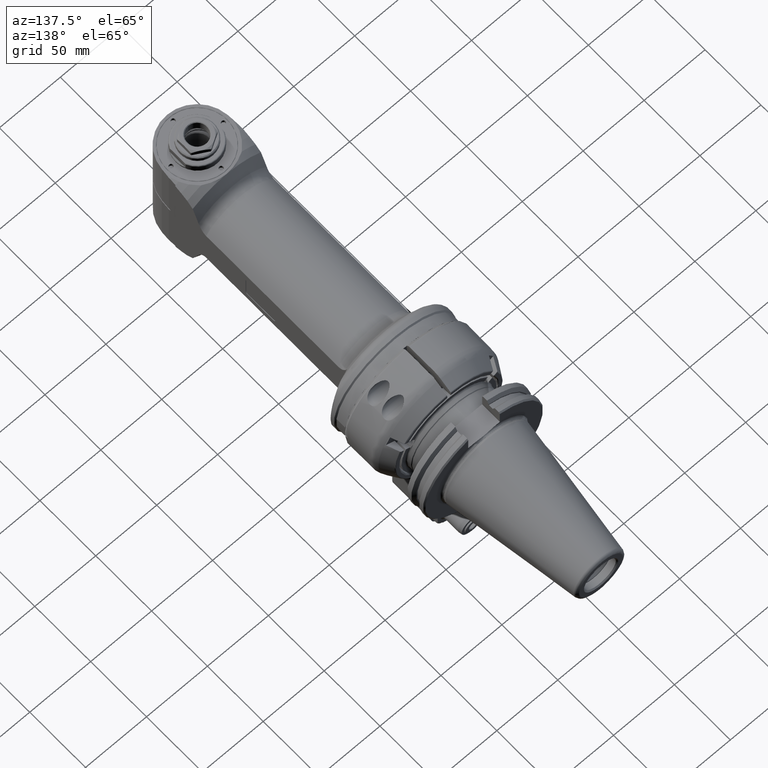
[diagram: clean part render]
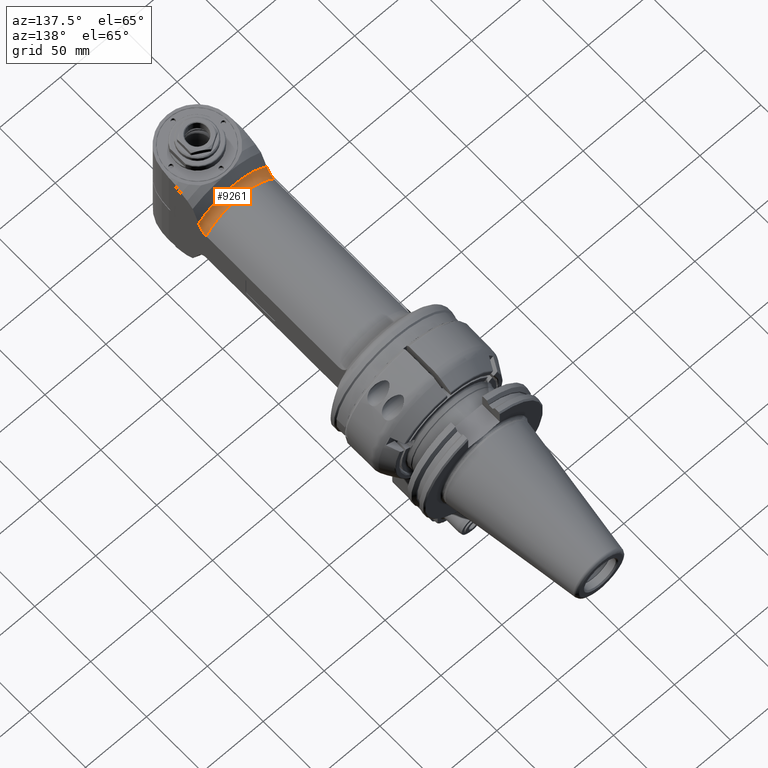
[diagram: same view with one face highlighted and labeled with its STEP entity id]
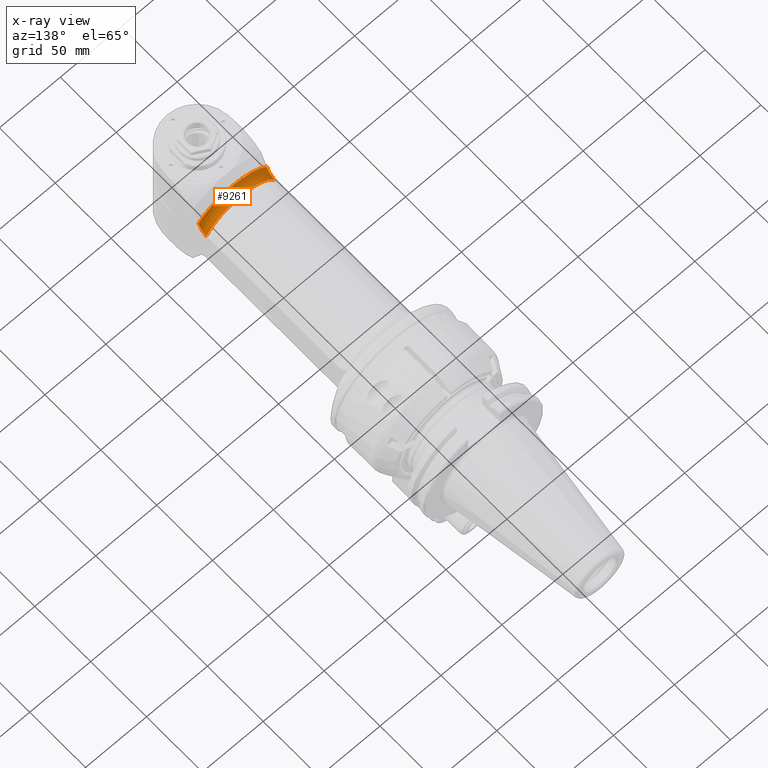
[diagram: x-ray of the same camera — body ghosted, the highlighted face saturated]
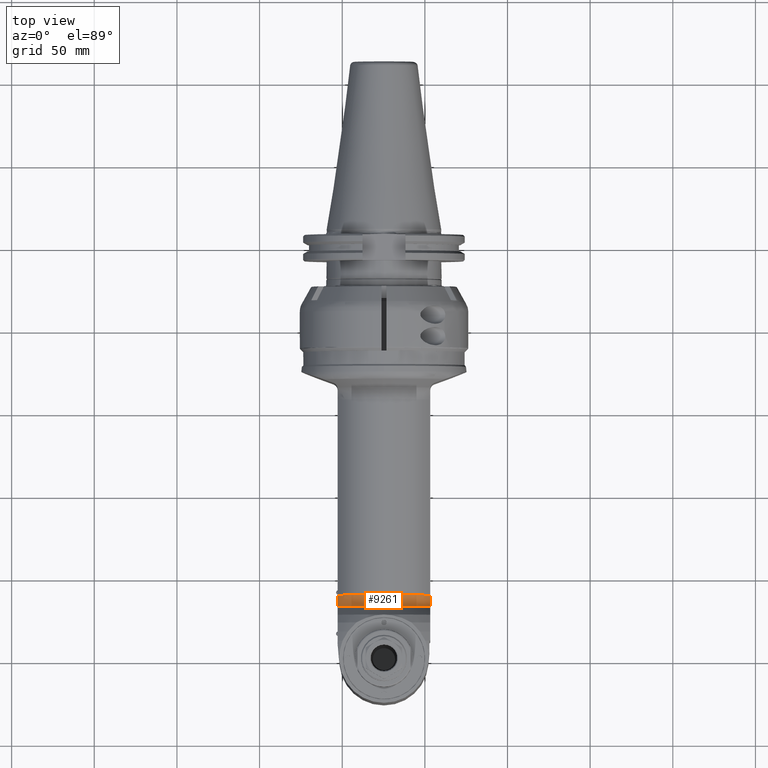
[diagram: same view with one face highlighted and labeled with its STEP entity id]
A machine part, auxiliary view. The second image highlights one B-rep face of the part: STEP entity #9261.
The next image is the same camera in x-ray: the body ghosted, the highlighted face saturated — about 0% of this face is hidden behind the body in this view.
A second angle (top view) of the same face is appended — the face is thin or edge-on in the first view.
In plain terms, the highlighted toroidal blend (fillet) surface has major radius 40 mm and minor (blend) radius 8 mm.
Its self-contained STEP definition (entity closure, byte-faithful):
#228=B_SPLINE_CURVE_WITH_KNOTS('',3,(#16384,#16385,#16386,#16387,#16388,
#16389,#16390,#16391,#16392,#16393,#16394,#16395,#16396,#16397),
 .UNSPECIFIED.,.F.,.F.,(4,2,2,2,2,2,4),(-3.92307824233944,-3.77852981809237,
-3.54200246554002,-3.36008479279991,-3.17816712005981,-3.04857089918351,
-2.93597407218818),.UNSPECIFIED.);
#237=B_SPLINE_CURVE_WITH_KNOTS('',3,(#16551,#16552,#16553,#16554,#16555,
#16556,#16557,#16558,#16559,#16560,#16561,#16562,#16563,#16564),
 .UNSPECIFIED.,.F.,.F.,(4,2,2,2,2,2,4),(2.93597407218818,3.04857089918351,
3.17816712005981,3.36008479279991,3.54200246554002,3.77852981809237,3.92307824233944),
 .UNSPECIFIED.);
#2431=FACE_OUTER_BOUND('',#3045,.T.);
#3045=EDGE_LOOP('',(#8016,#8017,#8018,#8019));
#3650=CIRCLE('',#10281,32.);
#3651=CIRCLE('',#10283,36.);
#4430=VERTEX_POINT('',#16381);
#4431=VERTEX_POINT('',#16383);
#4455=VERTEX_POINT('',#16545);
#4456=VERTEX_POINT('',#16549);
#5658=EDGE_CURVE('',#4431,#4430,#228,.T.);
#5687=EDGE_CURVE('',#4430,#4455,#3650,.T.);
#5688=EDGE_CURVE('',#4456,#4431,#3651,.T.);
#5689=EDGE_CURVE('',#4455,#4456,#237,.T.);
#8016=ORIENTED_EDGE('',*,*,#5688,.T.);
#8017=ORIENTED_EDGE('',*,*,#5658,.T.);
#8018=ORIENTED_EDGE('',*,*,#5687,.T.);
#8019=ORIENTED_EDGE('',*,*,#5689,.T.);
#8869=TOROIDAL_SURFACE('',#10282,40.,8.);
#9261=ADVANCED_FACE('',(#2431),#8869,.F.);
#10281=AXIS2_PLACEMENT_3D('',#16547,#12649,#12650);
#10282=AXIS2_PLACEMENT_3D('',#16548,#12651,#12652);
#10283=AXIS2_PLACEMENT_3D('',#16550,#12653,#12654);
#12649=DIRECTION('center_axis',(1.,0.,0.));
#12650=DIRECTION('ref_axis',(0.,-1.,0.));
#12651=DIRECTION('center_axis',(1.,0.,0.));
#12652=DIRECTION('ref_axis',(0.,-1.,0.));
#12653=DIRECTION('center_axis',(-1.,0.,0.));
#12654=DIRECTION('ref_axis',(0.,-0.628539361054693,-0.777777777777791));
#16381=CARTESIAN_POINT('',(151.3811978465,-15.49193338483,28.));
#16383=CARTESIAN_POINT('',(158.3094010768,-22.62741699797,28.));
#16384=CARTESIAN_POINT('Ctrl Pts',(158.309401076779,-22.6274169979778,28.));
#16385=CARTESIAN_POINT('Ctrl Pts',(158.135199044939,-22.1473726465425,28.));
#16386=CARTESIAN_POINT('Ctrl Pts',(157.934574124956,-21.6588360308148,28.));
#16387=CARTESIAN_POINT('Ctrl Pts',(157.347305959135,-20.3989143849032,28.));
#16388=CARTESIAN_POINT('Ctrl Pts',(156.921636569653,-19.6460707325903,28.));
#16389=CARTESIAN_POINT('Ctrl Pts',(156.138105696561,-18.4921239661789,28.));
#16390=CARTESIAN_POINT('Ctrl Pts',(155.730416567205,-17.9652022129463,28.));
#16391=CARTESIAN_POINT('Ctrl Pts',(154.820668957897,-17.0081024201193,28.));
#16392=CARTESIAN_POINT('Ctrl Pts',(154.317498824133,-16.5789816504194,28.));
#16393=CARTESIAN_POINT('Ctrl Pts',(153.440239087809,-16.0234209939818,28.));
#16394=CARTESIAN_POINT('Ctrl Pts',(152.973572826115,-15.7977099228234,28.));
#16395=CARTESIAN_POINT('Ctrl Pts',(152.201408747019,-15.5620993782773,28.));
#16396=CARTESIAN_POINT('Ctrl Pts',(151.756520603151,-15.4919333848297,28.));
#16397=CARTESIAN_POINT('Ctrl Pts',(151.3811978465,-15.4919333848297,28.));
#16545=CARTESIAN_POINT('',(151.3811978465,-15.49193338483,-28.));
#16547=CARTESIAN_POINT('Origin',(151.3811978465,0.,0.));
#16548=CARTESIAN_POINT('Origin',(151.3811978465,0.,0.));
#16549=CARTESIAN_POINT('',(158.3094010768,-22.62741699797,-28.));
#16550=CARTESIAN_POINT('Origin',(158.3094010768,0.,0.));
#16551=CARTESIAN_POINT('Ctrl Pts',(151.3811978465,-15.4919333848297,-28.));
#16552=CARTESIAN_POINT('Ctrl Pts',(151.756520603151,-15.4919333848297,-28.));
#16553=CARTESIAN_POINT('Ctrl Pts',(152.201408747019,-15.5620993782773,-28.));
#16554=CARTESIAN_POINT('Ctrl Pts',(152.973572826116,-15.7977099228234,-28.));
#16555=CARTESIAN_POINT('Ctrl Pts',(153.440239087809,-16.0234209939818,-28.));
#16556=CARTESIAN_POINT('Ctrl Pts',(154.317498824133,-16.5789816504194,-28.));
#16557=CARTESIAN_POINT('Ctrl Pts',(154.820668957897,-17.0081024201193,-28.));
#16558=CARTESIAN_POINT('Ctrl Pts',(155.730416567205,-17.9652022129463,-28.));
#16559=CARTESIAN_POINT('Ctrl Pts',(156.138105696561,-18.492123966179,-28.));
#16560=CARTESIAN_POINT('Ctrl Pts',(156.921636569653,-19.6460707325903,-28.));
#16561=CARTESIAN_POINT('Ctrl Pts',(157.347305959135,-20.3989143849032,-28.));
#16562=CARTESIAN_POINT('Ctrl Pts',(157.934574124956,-21.6588360308148,-28.));
#16563=CARTESIAN_POINT('Ctrl Pts',(158.135199044939,-22.1473726465425,-28.));
#16564=CARTESIAN_POINT('Ctrl Pts',(158.309401076779,-22.6274169979778,-28.));